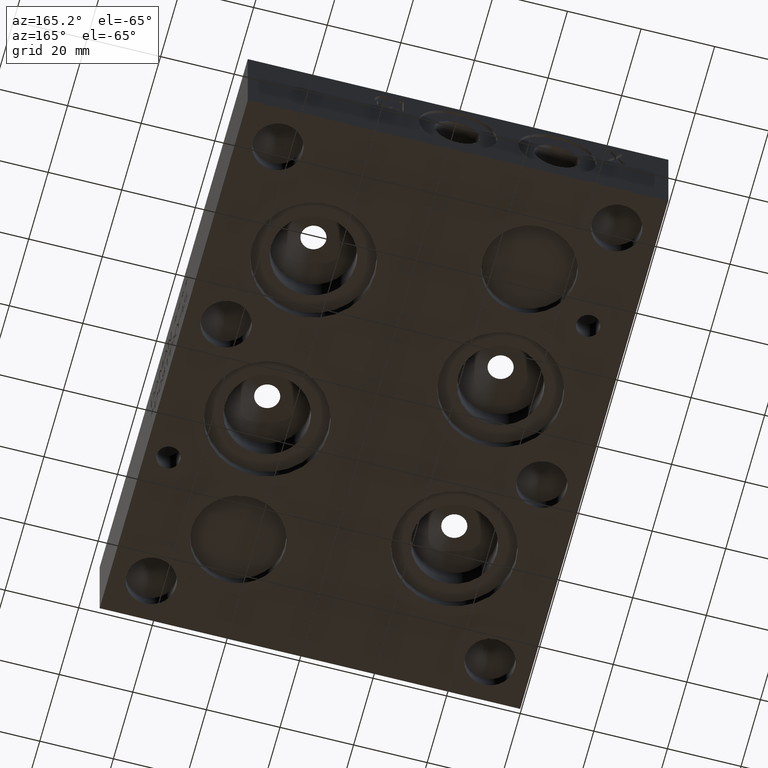
[diagram: clean part render]
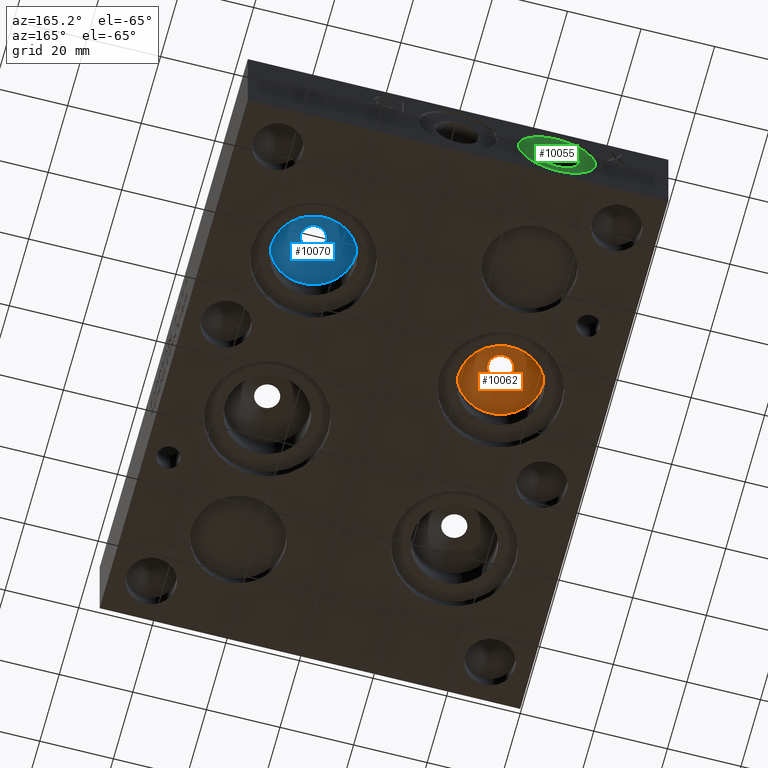
[diagram: same view with three faces highlighted in distinct colors, each labeled with its STEP entity id]
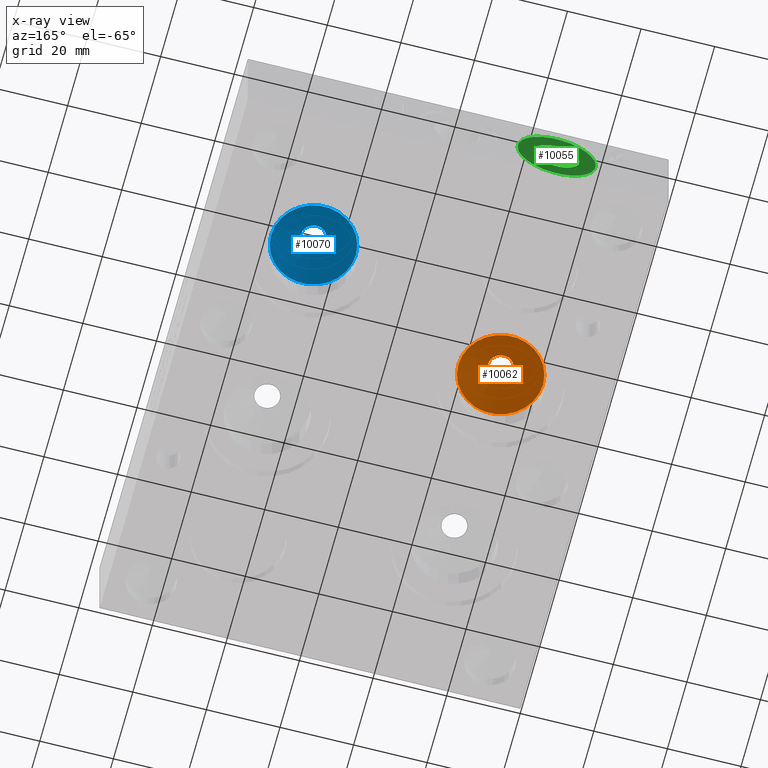
[diagram: x-ray of the same camera — body ghosted, the three highlighted faces saturated]
A machine part, auxiliary view with three faces highlighted in distinct colors.
The next image is the same camera in x-ray (body ghosted, the three faces saturated) — at least one of them is partly hidden behind the body in this view.
Their STEP definitions:

[orange] entity #10062 — the highlighted conical surface has half-angle 60 deg.
#141=CIRCLE('',#10549,11.5062);
#142=CIRCLE('',#10550,3.43503376231787);
#143=CIRCLE('',#10551,11.5062);
#285=CONICAL_SURFACE('',#10548,5.7531,1.0471975511966);
#1178=FACE_OUTER_BOUND('',#1724,.T.);
#1724=EDGE_LOOP('',(#8432,#8433,#8434,#8435,#8436));
#2736=LINE('',#16870,#3702);
#3702=VECTOR('',#12454,5.7531);
#4580=VERTEX_POINT('',#16866);
#4581=VERTEX_POINT('',#16867);
#4582=VERTEX_POINT('',#16869);
#5936=EDGE_CURVE('',#4580,#4581,#141,.T.);
#5937=EDGE_CURVE('',#4581,#4582,#2736,.T.);
#5938=EDGE_CURVE('',#4582,#4582,#142,.T.);
#5939=EDGE_CURVE('',#4581,#4580,#143,.T.);
#8432=ORIENTED_EDGE('',*,*,#5936,.T.);
#8433=ORIENTED_EDGE('',*,*,#5937,.T.);
#8434=ORIENTED_EDGE('',*,*,#5938,.F.);
#8435=ORIENTED_EDGE('',*,*,#5937,.F.);
#8436=ORIENTED_EDGE('',*,*,#5939,.T.);
#10062=ADVANCED_FACE('',(#1178),#285,.F.);
#10548=AXIS2_PLACEMENT_3D('',#16865,#12450,#12451);
#10549=AXIS2_PLACEMENT_3D('',#16868,#12452,#12453);
#10550=AXIS2_PLACEMENT_3D('',#16871,#12455,#12456);
#10551=AXIS2_PLACEMENT_3D('',#16872,#12457,#12458);
#12450=DIRECTION('center_axis',(0.,0.,-1.));
#12451=DIRECTION('ref_axis',(1.,0.,0.));
#12452=DIRECTION('center_axis',(0.,0.,-1.));
#12453=DIRECTION('ref_axis',(1.,0.,0.));
#12454=DIRECTION('',(0.866025403784439,-1.06057523872491E-16,0.5));
#12455=DIRECTION('center_axis',(0.,0.,-1.));
#12456=DIRECTION('ref_axis',(1.,0.,0.));
#12457=DIRECTION('center_axis',(0.,0.,-1.));
#12458=DIRECTION('ref_axis',(1.,0.,0.));
#16865=CARTESIAN_POINT('Origin',(28.6004,88.1126,12.7586638336748));
#16866=CARTESIAN_POINT('',(40.1066,88.1126,9.43711));
#16867=CARTESIAN_POINT('',(17.0942,88.1126,9.43711));
#16868=CARTESIAN_POINT('Origin',(28.6004,88.1126,9.43711));
#16869=CARTESIAN_POINT('',(25.1653662376821,88.1126,14.097));
#16870=CARTESIAN_POINT('',(22.8473,88.1126,12.7586638336748));
#16871=CARTESIAN_POINT('Origin',(28.6004,88.1126,14.097));
#16872=CARTESIAN_POINT('Origin',(28.6004,88.1126,9.43711));

[blue] entity #10070 — the highlighted conical surface has half-angle 60 deg.
#157=CIRCLE('',#10573,11.5062);
#158=CIRCLE('',#10574,3.43756815940739);
#159=CIRCLE('',#10575,11.5062);
#287=CONICAL_SURFACE('',#10572,5.7531,1.0471975511966);
#1186=FACE_OUTER_BOUND('',#1734,.T.);
#1734=EDGE_LOOP('',(#8470,#8471,#8472,#8473,#8474));
#2742=LINE('',#16916,#3708);
#3708=VECTOR('',#12508,5.7531);
#4596=VERTEX_POINT('',#16912);
#4597=VERTEX_POINT('',#16913);
#4598=VERTEX_POINT('',#16915);
#5958=EDGE_CURVE('',#4596,#4597,#157,.T.);
#5959=EDGE_CURVE('',#4597,#4598,#2742,.T.);
#5960=EDGE_CURVE('',#4598,#4598,#158,.T.);
#5961=EDGE_CURVE('',#4597,#4596,#159,.T.);
#8470=ORIENTED_EDGE('',*,*,#5958,.T.);
#8471=ORIENTED_EDGE('',*,*,#5959,.T.);
#8472=ORIENTED_EDGE('',*,*,#5960,.F.);
#8473=ORIENTED_EDGE('',*,*,#5959,.F.);
#8474=ORIENTED_EDGE('',*,*,#5961,.T.);
#10070=ADVANCED_FACE('',(#1186),#287,.F.);
#10572=AXIS2_PLACEMENT_3D('',#16911,#12504,#12505);
#10573=AXIS2_PLACEMENT_3D('',#16914,#12506,#12507);
#10574=AXIS2_PLACEMENT_3D('',#16917,#12509,#12510);
#10575=AXIS2_PLACEMENT_3D('',#16918,#12511,#12512);
#12504=DIRECTION('center_axis',(0.,0.,-1.));
#12505=DIRECTION('ref_axis',(1.,0.,0.));
#12506=DIRECTION('center_axis',(0.,0.,-1.));
#12507=DIRECTION('ref_axis',(1.,0.,0.));
#12508=DIRECTION('',(0.866025403784439,-1.06057523872491E-16,0.5));
#12509=DIRECTION('center_axis',(0.,0.,-1.));
#12510=DIRECTION('ref_axis',(1.,0.,0.));
#12511=DIRECTION('center_axis',(0.,0.,-1.));
#12512=DIRECTION('ref_axis',(1.,0.,0.));
#16911=CARTESIAN_POINT('Origin',(85.7504,111.9124,12.7586638336748));
#16912=CARTESIAN_POINT('',(97.2566,111.9124,9.43711));
#16913=CARTESIAN_POINT('',(74.2442,111.9124,9.43711));
#16914=CARTESIAN_POINT('Origin',(85.7504,111.9124,9.43711));
#16915=CARTESIAN_POINT('',(82.3128318405926,111.9124,14.0955367651581));
#16916=CARTESIAN_POINT('',(79.9973,111.9124,12.7586638336748));
#16917=CARTESIAN_POINT('Origin',(85.7504,111.9124,14.0955367651581));
#16918=CARTESIAN_POINT('Origin',(85.7504,111.9124,9.43711));

[green] entity #10055 — the highlighted planar face has unit normal (0, -1, 0).
#127=CIRCLE('',#10527,10.6426);
#128=CIRCLE('',#10528,10.6426);
#129=CIRCLE('',#10530,6.1976);
#130=CIRCLE('',#10531,6.1976);
#347=FACE_BOUND('',#1717,.T.);
#1171=FACE_OUTER_BOUND('',#1716,.T.);
#1716=EDGE_LOOP('',(#8401,#8402));
#1717=EDGE_LOOP('',(#8403,#8404));
#4566=VERTEX_POINT('',#16825);
#4567=VERTEX_POINT('',#16827);
#4568=VERTEX_POINT('',#16831);
#4569=VERTEX_POINT('',#16832);
#5918=EDGE_CURVE('',#4566,#4567,#127,.T.);
#5919=EDGE_CURVE('',#4567,#4566,#128,.T.);
#5920=EDGE_CURVE('',#4568,#4569,#129,.T.);
#5921=EDGE_CURVE('',#4569,#4568,#130,.T.);
#8401=ORIENTED_EDGE('',*,*,#5919,.F.);
#8402=ORIENTED_EDGE('',*,*,#5918,.F.);
#8403=ORIENTED_EDGE('',*,*,#5920,.T.);
#8404=ORIENTED_EDGE('',*,*,#5921,.T.);
#9220=PLANE('',#10529);
#10055=ADVANCED_FACE('',(#1171,#347),#9220,.F.);
#10527=AXIS2_PLACEMENT_3D('',#16828,#12404,#12405);
#10528=AXIS2_PLACEMENT_3D('',#16829,#12406,#12407);
#10529=AXIS2_PLACEMENT_3D('',#16830,#12408,#12409);
#10530=AXIS2_PLACEMENT_3D('',#16833,#12410,#12411);
#10531=AXIS2_PLACEMENT_3D('',#16834,#12412,#12413);
#12404=DIRECTION('center_axis',(0.,-1.,0.));
#12405=DIRECTION('ref_axis',(1.,0.,0.));
#12406=DIRECTION('center_axis',(0.,-1.,0.));
#12407=DIRECTION('ref_axis',(1.,0.,0.));
#12408=DIRECTION('center_axis',(0.,-1.,0.));
#12409=DIRECTION('ref_axis',(0.,0.,-1.));
#12410=DIRECTION('center_axis',(0.,-1.,0.));
#12411=DIRECTION('ref_axis',(1.,0.,0.));
#12412=DIRECTION('center_axis',(0.,-1.,0.));
#12413=DIRECTION('ref_axis',(1.,0.,0.));
#16825=CARTESIAN_POINT('',(19.5072,151.6126,12.7));
#16827=CARTESIAN_POINT('',(40.7924,151.6126,12.7));
#16828=CARTESIAN_POINT('Origin',(30.1498,151.6126,12.7));
#16829=CARTESIAN_POINT('Origin',(30.1498,151.6126,12.7));
#16830=CARTESIAN_POINT('Origin',(36.3474,151.6126,12.7));
#16831=CARTESIAN_POINT('',(36.3474,151.6126,12.7));
#16832=CARTESIAN_POINT('',(23.9522,151.6126,12.7));
#16833=CARTESIAN_POINT('Origin',(30.1498,151.6126,12.7));
#16834=CARTESIAN_POINT('Origin',(30.1498,151.6126,12.7));